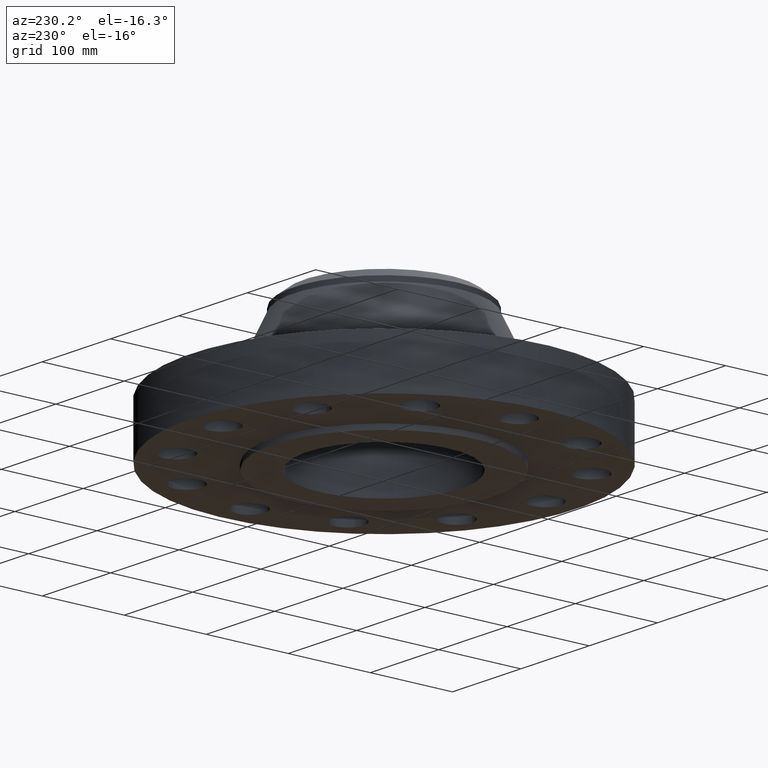
[diagram: clean part render]
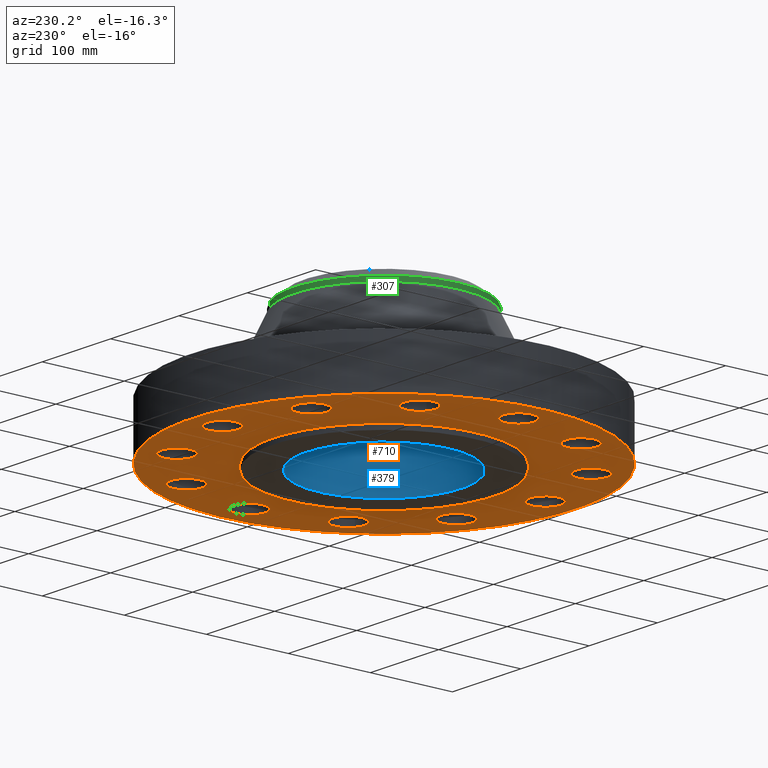
[diagram: same view with three faces highlighted in distinct colors, each labeled with its STEP entity id]
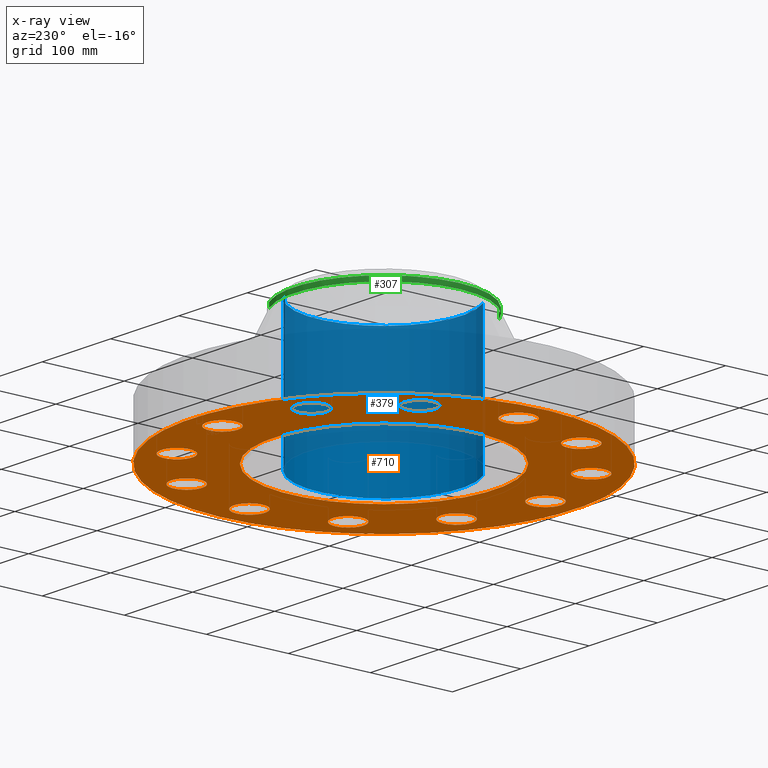
[diagram: x-ray of the same camera — body ghosted, the three highlighted faces saturated]
A machine part, auxiliary view with three faces highlighted in distinct colors.
The next image is the same camera in x-ray (body ghosted, the three faces saturated) — at least one of them is partly hidden behind the body in this view.
Their STEP definitions:

[orange] entity #710 — the highlighted planar face has unit normal (0, 0, -1).
#51=AXIS2_PLACEMENT_3D('Circle Axis2P3D',#49,#50,$) ;
#77=AXIS2_PLACEMENT_3D('Circle Axis2P3D',#75,#76,$) ;
#99=AXIS2_PLACEMENT_3D('Circle Axis2P3D',#97,#98,$) ;
#134=AXIS2_PLACEMENT_3D('Circle Axis2P3D',#132,#133,$) ;
#466=AXIS2_PLACEMENT_3D('Circle Axis2P3D',#464,#465,$) ;
#485=AXIS2_PLACEMENT_3D('Circle Axis2P3D',#483,#484,$) ;
#498=AXIS2_PLACEMENT_3D('Plane Axis2P3D',#495,#496,#497) ;
#514=AXIS2_PLACEMENT_3D('Circle Axis2P3D',#512,#513,$) ;
#523=AXIS2_PLACEMENT_3D('Circle Axis2P3D',#521,#522,$) ;
#532=AXIS2_PLACEMENT_3D('Circle Axis2P3D',#530,#531,$) ;
#541=AXIS2_PLACEMENT_3D('Circle Axis2P3D',#539,#540,$) ;
#550=AXIS2_PLACEMENT_3D('Circle Axis2P3D',#548,#549,$) ;
#559=AXIS2_PLACEMENT_3D('Circle Axis2P3D',#557,#558,$) ;
#568=AXIS2_PLACEMENT_3D('Circle Axis2P3D',#566,#567,$) ;
#577=AXIS2_PLACEMENT_3D('Circle Axis2P3D',#575,#576,$) ;
#586=AXIS2_PLACEMENT_3D('Circle Axis2P3D',#584,#585,$) ;
#595=AXIS2_PLACEMENT_3D('Circle Axis2P3D',#593,#594,$) ;
#604=AXIS2_PLACEMENT_3D('Circle Axis2P3D',#602,#603,$) ;
#613=AXIS2_PLACEMENT_3D('Circle Axis2P3D',#611,#612,$) ;
#622=AXIS2_PLACEMENT_3D('Circle Axis2P3D',#620,#621,$) ;
#631=AXIS2_PLACEMENT_3D('Circle Axis2P3D',#629,#630,$) ;
#640=AXIS2_PLACEMENT_3D('Circle Axis2P3D',#638,#639,$) ;
#649=AXIS2_PLACEMENT_3D('Circle Axis2P3D',#647,#648,$) ;
#658=AXIS2_PLACEMENT_3D('Circle Axis2P3D',#656,#657,$) ;
#667=AXIS2_PLACEMENT_3D('Circle Axis2P3D',#665,#666,$) ;
#676=AXIS2_PLACEMENT_3D('Circle Axis2P3D',#674,#675,$) ;
#685=AXIS2_PLACEMENT_3D('Circle Axis2P3D',#683,#684,$) ;
#694=AXIS2_PLACEMENT_3D('Circle Axis2P3D',#692,#693,$) ;
#703=AXIS2_PLACEMENT_3D('Circle Axis2P3D',#701,#702,$) ;
#44=CARTESIAN_POINT('Vertex',(7.09181307861,0.359569153955,-2.79741234551E-016)) ;
#49=CARTESIAN_POINT('Axis2P3D Location',(7.75000000003,0.,0.)) ;
#53=CARTESIAN_POINT('Vertex',(8.40818692145,-0.359569153955,-2.79741234551E-016)) ;
#75=CARTESIAN_POINT('Axis2P3D Location',(7.75000000003,0.,0.)) ;
#97=CARTESIAN_POINT('Axis2P3D Location',(0.,0.,1.1189649382E-015)) ;
#101=CARTESIAN_POINT('Vertex',(-4.43468623211,-8.11763869752,1.1189649382E-015)) ;
#103=CARTESIAN_POINT('Vertex',(4.43468623211,8.11763869752,1.1189649382E-015)) ;
#132=CARTESIAN_POINT('Axis2P3D Location',(0.,0.,1.1189649382E-015)) ;
#461=CARTESIAN_POINT('Vertex',(-2.54814673769,-4.66435131647,5.59482469102E-016)) ;
#464=CARTESIAN_POINT('Axis2P3D Location',(0.,0.,5.59482469102E-016)) ;
#468=CARTESIAN_POINT('Vertex',(2.54814673769,4.66435131647,5.59482469102E-016)) ;
#483=CARTESIAN_POINT('Axis2P3D Location',(0.,0.,5.59482469102E-016)) ;
#495=CARTESIAN_POINT('Axis2P3D Location',(0.,5.31500000002,0.)) ;
#512=CARTESIAN_POINT('Axis2P3D Location',(6.71169687936,-3.87500000002,0.)) ;
#516=CARTESIAN_POINT('Vertex',(6.32147486194,-3.23451051756,0.)) ;
#518=CARTESIAN_POINT('Vertex',(7.10191889677,-4.51548948247,-2.79741234551E-016)) ;
#521=CARTESIAN_POINT('Axis2P3D Location',(6.71169687936,-3.87500000002,0.)) ;
#530=CARTESIAN_POINT('Axis2P3D Location',(3.87500000002,-6.71169687936,0.)) ;
#534=CARTESIAN_POINT('Vertex',(3.85730256105,-5.96190570799,0.)) ;
#536=CARTESIAN_POINT('Vertex',(3.89269743898,-7.46148805072,-2.79741234551E-016)) ;
#539=CARTESIAN_POINT('Axis2P3D Location',(3.87500000002,-6.71169687936,0.)) ;
#548=CARTESIAN_POINT('Axis2P3D Location',(-4.89547160465E-016,-7.75000000003,0.)) ;
#552=CARTESIAN_POINT('Vertex',(0.359569153955,-7.09181307861,0.)) ;
#554=CARTESIAN_POINT('Vertex',(-0.359569153955,-8.40818692145,-2.79741234551E-016)) ;
#557=CARTESIAN_POINT('Axis2P3D Location',(-8.39223703654E-016,-7.75000000003,0.)) ;
#566=CARTESIAN_POINT('Axis2P3D Location',(-3.87500000002,-6.71169687936,0.)) ;
#570=CARTESIAN_POINT('Vertex',(-3.23451051756,-6.32147486194,0.)) ;
#572=CARTESIAN_POINT('Vertex',(-4.51548948247,-7.10191889677,-2.51767111096E-015)) ;
#575=CARTESIAN_POINT('Axis2P3D Location',(-3.87500000002,-6.71169687936,0.)) ;
#584=CARTESIAN_POINT('Axis2P3D Location',(-6.71169687936,-3.87500000002,0.)) ;
#588=CARTESIAN_POINT('Vertex',(-5.96190570799,-3.85730256105,0.)) ;
#590=CARTESIAN_POINT('Vertex',(-7.46148805072,-3.89269743898,-2.79741234551E-016)) ;
#593=CARTESIAN_POINT('Axis2P3D Location',(-6.71169687936,-3.87500000002,0.)) ;
#602=CARTESIAN_POINT('Axis2P3D Location',(-7.75000000003,-1.1189649382E-015,0.)) ;
#606=CARTESIAN_POINT('Vertex',(-7.09181307861,-0.359569153955,0.)) ;
#608=CARTESIAN_POINT('Vertex',(-8.40818692145,0.359569153955,-2.79741234551E-016)) ;
#611=CARTESIAN_POINT('Axis2P3D Location',(-7.75000000003,-1.1189649382E-015,0.)) ;
#620=CARTESIAN_POINT('Axis2P3D Location',(-6.71169687936,3.87500000002,0.)) ;
#624=CARTESIAN_POINT('Vertex',(-6.32147486194,3.23451051756,0.)) ;
#626=CARTESIAN_POINT('Vertex',(-7.10191889677,4.51548948247,-2.79741234551E-016)) ;
#629=CARTESIAN_POINT('Axis2P3D Location',(-6.71169687936,3.87500000002,0.)) ;
#638=CARTESIAN_POINT('Axis2P3D Location',(-3.87500000002,6.71169687936,0.)) ;
#642=CARTESIAN_POINT('Vertex',(-3.85730256105,5.96190570799,0.)) ;
#644=CARTESIAN_POINT('Vertex',(-3.89269743898,7.46148805072,-2.79741234551E-016)) ;
#647=CARTESIAN_POINT('Axis2P3D Location',(-3.87500000002,6.71169687936,0.)) ;
#656=CARTESIAN_POINT('Axis2P3D Location',(-5.59482469102E-016,7.75000000003,0.)) ;
#660=CARTESIAN_POINT('Vertex',(-0.359569153955,7.09181307861,0.)) ;
#662=CARTESIAN_POINT('Vertex',(0.359569153955,8.40818692145,-2.79741234551E-016)) ;
#665=CARTESIAN_POINT('Axis2P3D Location',(-2.09805925913E-016,7.75000000003,0.)) ;
#674=CARTESIAN_POINT('Axis2P3D Location',(3.87500000002,6.71169687936,0.)) ;
#678=CARTESIAN_POINT('Vertex',(3.23451051756,6.32147486194,0.)) ;
#680=CARTESIAN_POINT('Vertex',(4.51548948247,7.10191889677,-2.79741234551E-016)) ;
#683=CARTESIAN_POINT('Axis2P3D Location',(3.87500000002,6.71169687936,0.)) ;
#692=CARTESIAN_POINT('Axis2P3D Location',(6.71169687936,3.87500000002,0.)) ;
#696=CARTESIAN_POINT('Vertex',(5.96190570799,3.85730256105,0.)) ;
#698=CARTESIAN_POINT('Vertex',(7.46148805072,3.89269743898,-2.79741234551E-016)) ;
#701=CARTESIAN_POINT('Axis2P3D Location',(6.71169687936,3.87500000002,0.)) ;
#50=DIRECTION('Axis2P3D Direction',(0.,-0.,-0.0393700787402)) ;
#76=DIRECTION('Axis2P3D Direction',(0.,-0.,-0.0393700787402)) ;
#98=DIRECTION('Axis2P3D Direction',(0.,0.,-0.0393700787402)) ;
#133=DIRECTION('Axis2P3D Direction',(0.,0.,-0.0393700787402)) ;
#465=DIRECTION('Axis2P3D Direction',(0.,0.,-0.0393700787402)) ;
#484=DIRECTION('Axis2P3D Direction',(0.,0.,-0.0393700787402)) ;
#496=DIRECTION('Axis2P3D Direction',(0.,0.,-0.0393700787402)) ;
#497=DIRECTION('Axis2P3D XDirection',(0.0393700787402,0.,0.)) ;
#513=DIRECTION('Axis2P3D Direction',(0.,0.,-0.0393700787402)) ;
#522=DIRECTION('Axis2P3D Direction',(0.,0.,-0.0393700787402)) ;
#531=DIRECTION('Axis2P3D Direction',(0.,0.,-0.0393700787402)) ;
#540=DIRECTION('Axis2P3D Direction',(0.,0.,-0.0393700787402)) ;
#549=DIRECTION('Axis2P3D Direction',(0.,0.,-0.0393700787402)) ;
#558=DIRECTION('Axis2P3D Direction',(0.,0.,-0.0393700787402)) ;
#567=DIRECTION('Axis2P3D Direction',(0.,0.,-0.0393700787402)) ;
#576=DIRECTION('Axis2P3D Direction',(0.,0.,-0.0393700787402)) ;
#585=DIRECTION('Axis2P3D Direction',(0.,0.,-0.0393700787402)) ;
#594=DIRECTION('Axis2P3D Direction',(0.,0.,-0.0393700787402)) ;
#603=DIRECTION('Axis2P3D Direction',(0.,0.,-0.0393700787402)) ;
#612=DIRECTION('Axis2P3D Direction',(0.,0.,-0.0393700787402)) ;
#621=DIRECTION('Axis2P3D Direction',(0.,0.,-0.0393700787402)) ;
#630=DIRECTION('Axis2P3D Direction',(0.,0.,-0.0393700787402)) ;
#639=DIRECTION('Axis2P3D Direction',(0.,0.,-0.0393700787402)) ;
#648=DIRECTION('Axis2P3D Direction',(0.,0.,-0.0393700787402)) ;
#657=DIRECTION('Axis2P3D Direction',(0.,0.,-0.0393700787402)) ;
#666=DIRECTION('Axis2P3D Direction',(0.,0.,-0.0393700787402)) ;
#675=DIRECTION('Axis2P3D Direction',(0.,0.,-0.0393700787402)) ;
#684=DIRECTION('Axis2P3D Direction',(0.,0.,-0.0393700787402)) ;
#693=DIRECTION('Axis2P3D Direction',(0.,0.,-0.0393700787402)) ;
#702=DIRECTION('Axis2P3D Direction',(0.,0.,-0.0393700787402)) ;
#501=ORIENTED_EDGE('',*,*,#105,.T.) ;
#502=ORIENTED_EDGE('',*,*,#136,.T.) ;
#505=ORIENTED_EDGE('',*,*,#79,.F.) ;
#506=ORIENTED_EDGE('',*,*,#55,.F.) ;
#509=ORIENTED_EDGE('',*,*,#487,.F.) ;
#510=ORIENTED_EDGE('',*,*,#470,.F.) ;
#527=ORIENTED_EDGE('',*,*,#520,.F.) ;
#528=ORIENTED_EDGE('',*,*,#525,.F.) ;
#545=ORIENTED_EDGE('',*,*,#538,.F.) ;
#546=ORIENTED_EDGE('',*,*,#543,.F.) ;
#563=ORIENTED_EDGE('',*,*,#556,.F.) ;
#564=ORIENTED_EDGE('',*,*,#561,.F.) ;
#581=ORIENTED_EDGE('',*,*,#574,.F.) ;
#582=ORIENTED_EDGE('',*,*,#579,.F.) ;
#599=ORIENTED_EDGE('',*,*,#592,.F.) ;
#600=ORIENTED_EDGE('',*,*,#597,.F.) ;
#617=ORIENTED_EDGE('',*,*,#610,.F.) ;
#618=ORIENTED_EDGE('',*,*,#615,.F.) ;
#635=ORIENTED_EDGE('',*,*,#628,.F.) ;
#636=ORIENTED_EDGE('',*,*,#633,.F.) ;
#653=ORIENTED_EDGE('',*,*,#646,.F.) ;
#654=ORIENTED_EDGE('',*,*,#651,.F.) ;
#671=ORIENTED_EDGE('',*,*,#664,.F.) ;
#672=ORIENTED_EDGE('',*,*,#669,.F.) ;
#689=ORIENTED_EDGE('',*,*,#682,.F.) ;
#690=ORIENTED_EDGE('',*,*,#687,.F.) ;
#707=ORIENTED_EDGE('',*,*,#700,.F.) ;
#708=ORIENTED_EDGE('',*,*,#705,.F.) ;
#507=FACE_BOUND('',#504,.T.) ;
#511=FACE_BOUND('',#508,.T.) ;
#529=FACE_BOUND('',#526,.T.) ;
#547=FACE_BOUND('',#544,.T.) ;
#565=FACE_BOUND('',#562,.T.) ;
#583=FACE_BOUND('',#580,.T.) ;
#601=FACE_BOUND('',#598,.T.) ;
#619=FACE_BOUND('',#616,.T.) ;
#637=FACE_BOUND('',#634,.T.) ;
#655=FACE_BOUND('',#652,.T.) ;
#673=FACE_BOUND('',#670,.T.) ;
#691=FACE_BOUND('',#688,.T.) ;
#709=FACE_BOUND('',#706,.T.) ;
#710=ADVANCED_FACE('PartBody',(#503,#507,#511,#529,#547,#565,#583,#601,#619,#637,#655,#673,#691,#709),#499,.T.) ;
#52=CIRCLE('generated circle',#51,0.750000000003) ;
#78=CIRCLE('generated circle',#77,0.750000000003) ;
#100=CIRCLE('generated circle',#99,9.25000000004) ;
#135=CIRCLE('generated circle',#134,9.25000000004) ;
#467=CIRCLE('generated circle',#466,5.31500000002) ;
#486=CIRCLE('generated circle',#485,5.31500000002) ;
#515=CIRCLE('generated circle',#514,0.750000000003) ;
#524=CIRCLE('generated circle',#523,0.750000000003) ;
#533=CIRCLE('generated circle',#532,0.750000000003) ;
#542=CIRCLE('generated circle',#541,0.750000000003) ;
#551=CIRCLE('generated circle',#550,0.750000000003) ;
#560=CIRCLE('generated circle',#559,0.750000000003) ;
#569=CIRCLE('generated circle',#568,0.750000000003) ;
#578=CIRCLE('generated circle',#577,0.750000000003) ;
#587=CIRCLE('generated circle',#586,0.750000000003) ;
#596=CIRCLE('generated circle',#595,0.750000000003) ;
#605=CIRCLE('generated circle',#604,0.750000000003) ;
#614=CIRCLE('generated circle',#613,0.750000000003) ;
#623=CIRCLE('generated circle',#622,0.750000000003) ;
#632=CIRCLE('generated circle',#631,0.750000000003) ;
#641=CIRCLE('generated circle',#640,0.750000000003) ;
#650=CIRCLE('generated circle',#649,0.750000000003) ;
#659=CIRCLE('generated circle',#658,0.750000000003) ;
#668=CIRCLE('generated circle',#667,0.750000000003) ;
#677=CIRCLE('generated circle',#676,0.750000000003) ;
#686=CIRCLE('generated circle',#685,0.750000000003) ;
#695=CIRCLE('generated circle',#694,0.750000000003) ;
#704=CIRCLE('generated circle',#703,0.750000000003) ;
#55=EDGE_CURVE('',#45,#54,#52,.T.) ;
#79=EDGE_CURVE('',#54,#45,#78,.T.) ;
#105=EDGE_CURVE('',#102,#104,#100,.T.) ;
#136=EDGE_CURVE('',#104,#102,#135,.T.) ;
#470=EDGE_CURVE('',#462,#469,#467,.T.) ;
#487=EDGE_CURVE('',#469,#462,#486,.T.) ;
#520=EDGE_CURVE('',#517,#519,#515,.T.) ;
#525=EDGE_CURVE('',#519,#517,#524,.T.) ;
#538=EDGE_CURVE('',#535,#537,#533,.T.) ;
#543=EDGE_CURVE('',#537,#535,#542,.T.) ;
#556=EDGE_CURVE('',#553,#555,#551,.T.) ;
#561=EDGE_CURVE('',#555,#553,#560,.T.) ;
#574=EDGE_CURVE('',#571,#573,#569,.T.) ;
#579=EDGE_CURVE('',#573,#571,#578,.T.) ;
#592=EDGE_CURVE('',#589,#591,#587,.T.) ;
#597=EDGE_CURVE('',#591,#589,#596,.T.) ;
#610=EDGE_CURVE('',#607,#609,#605,.T.) ;
#615=EDGE_CURVE('',#609,#607,#614,.T.) ;
#628=EDGE_CURVE('',#625,#627,#623,.T.) ;
#633=EDGE_CURVE('',#627,#625,#632,.T.) ;
#646=EDGE_CURVE('',#643,#645,#641,.T.) ;
#651=EDGE_CURVE('',#645,#643,#650,.T.) ;
#664=EDGE_CURVE('',#661,#663,#659,.T.) ;
#669=EDGE_CURVE('',#663,#661,#668,.T.) ;
#682=EDGE_CURVE('',#679,#681,#677,.T.) ;
#687=EDGE_CURVE('',#681,#679,#686,.T.) ;
#700=EDGE_CURVE('',#697,#699,#695,.T.) ;
#705=EDGE_CURVE('',#699,#697,#704,.T.) ;
#500=EDGE_LOOP('',(#501,#502)) ;
#504=EDGE_LOOP('',(#505,#506)) ;
#508=EDGE_LOOP('',(#509,#510)) ;
#526=EDGE_LOOP('',(#527,#528)) ;
#544=EDGE_LOOP('',(#545,#546)) ;
#562=EDGE_LOOP('',(#563,#564)) ;
#580=EDGE_LOOP('',(#581,#582)) ;
#598=EDGE_LOOP('',(#599,#600)) ;
#616=EDGE_LOOP('',(#617,#618)) ;
#634=EDGE_LOOP('',(#635,#636)) ;
#652=EDGE_LOOP('',(#653,#654)) ;
#670=EDGE_LOOP('',(#671,#672)) ;
#688=EDGE_LOOP('',(#689,#690)) ;
#706=EDGE_LOOP('',(#707,#708)) ;
#503=FACE_OUTER_BOUND('',#500,.T.) ;
#499=PLANE('',#498) ;
#45=VERTEX_POINT('',#44) ;
#54=VERTEX_POINT('',#53) ;
#102=VERTEX_POINT('',#101) ;
#104=VERTEX_POINT('',#103) ;
#462=VERTEX_POINT('',#461) ;
#469=VERTEX_POINT('',#468) ;
#517=VERTEX_POINT('',#516) ;
#519=VERTEX_POINT('',#518) ;
#535=VERTEX_POINT('',#534) ;
#537=VERTEX_POINT('',#536) ;
#553=VERTEX_POINT('',#552) ;
#555=VERTEX_POINT('',#554) ;
#571=VERTEX_POINT('',#570) ;
#573=VERTEX_POINT('',#572) ;
#589=VERTEX_POINT('',#588) ;
#591=VERTEX_POINT('',#590) ;
#607=VERTEX_POINT('',#606) ;
#609=VERTEX_POINT('',#608) ;
#625=VERTEX_POINT('',#624) ;
#627=VERTEX_POINT('',#626) ;
#643=VERTEX_POINT('',#642) ;
#645=VERTEX_POINT('',#644) ;
#661=VERTEX_POINT('',#660) ;
#663=VERTEX_POINT('',#662) ;
#679=VERTEX_POINT('',#678) ;
#681=VERTEX_POINT('',#680) ;
#697=VERTEX_POINT('',#696) ;
#699=VERTEX_POINT('',#698) ;

[blue] entity #379 — the highlighted cylindrical surface (partial cylindrical patch) has radius 94.4499 mm, axis along (0, 0, -1).
#343=AXIS2_PLACEMENT_3D('Cylinder Axis2P3D',#340,#341,#342) ;
#347=AXIS2_PLACEMENT_3D('Circle Axis2P3D',#345,#346,$) ;
#363=AXIS2_PLACEMENT_3D('Circle Axis2P3D',#361,#362,$) ;
#340=CARTESIAN_POINT('Axis2P3D Location',(0.,0.,3.06500000001)) ;
#345=CARTESIAN_POINT('Axis2P3D Location',(0.,0.,6.38000000003)) ;
#349=CARTESIAN_POINT('Vertex',(1.78274386531,3.2632907564,6.38000000003)) ;
#351=CARTESIAN_POINT('Vertex',(-1.78274386531,-3.2632907564,6.38000000003)) ;
#354=CARTESIAN_POINT('Line Origine',(1.78274386531,3.2632907564,3.06500000001)) ;
#358=CARTESIAN_POINT('Vertex',(1.78274386531,3.2632907564,-0.250000000001)) ;
#361=CARTESIAN_POINT('Axis2P3D Location',(0.,0.,-0.250000000001)) ;
#365=CARTESIAN_POINT('Vertex',(-1.78274386531,-3.2632907564,-0.250000000001)) ;
#368=CARTESIAN_POINT('Line Origine',(-1.78274386531,-3.2632907564,3.06500000001)) ;
#341=DIRECTION('Axis2P3D Direction',(0.,0.,-0.0393700787402)) ;
#342=DIRECTION('Axis2P3D XDirection',(-0.0188750212049,-0.0345504945626,0.)) ;
#346=DIRECTION('Axis2P3D Direction',(0.,0.,-0.0393700787402)) ;
#355=DIRECTION('Vector Direction',(0.,0.,-0.0393700787402)) ;
#362=DIRECTION('Axis2P3D Direction',(0.,0.,-0.0393700787402)) ;
#369=DIRECTION('Vector Direction',(0.,0.,-0.0393700787402)) ;
#356=VECTOR('Line Direction',#355,0.0393700787402) ;
#370=VECTOR('Line Direction',#369,0.0393700787402) ;
#374=ORIENTED_EDGE('',*,*,#353,.F.) ;
#375=ORIENTED_EDGE('',*,*,#360,.T.) ;
#376=ORIENTED_EDGE('',*,*,#367,.T.) ;
#377=ORIENTED_EDGE('',*,*,#372,.F.) ;
#379=ADVANCED_FACE('PartBody',(#378),#344,.F.) ;
#348=CIRCLE('generated circle',#347,3.71850000001) ;
#364=CIRCLE('generated circle',#363,3.71850000001) ;
#344=CYLINDRICAL_SURFACE('generated cylinder',#343,3.71850000001) ;
#353=EDGE_CURVE('',#350,#352,#348,.T.) ;
#360=EDGE_CURVE('',#350,#359,#357,.T.) ;
#367=EDGE_CURVE('',#359,#366,#364,.T.) ;
#372=EDGE_CURVE('',#352,#366,#371,.T.) ;
#373=EDGE_LOOP('',(#374,#375,#376,#377)) ;
#378=FACE_OUTER_BOUND('',#373,.T.) ;
#357=LINE('Line',#354,#356) ;
#371=LINE('Line',#368,#370) ;
#350=VERTEX_POINT('',#349) ;
#352=VERTEX_POINT('',#351) ;
#359=VERTEX_POINT('',#358) ;
#366=VERTEX_POINT('',#365) ;

[green] entity #307 — the highlighted cylindrical surface (partial cylindrical patch) has radius 109.601 mm, axis along (0, 0, -1).
#239=AXIS2_PLACEMENT_3D('Circle Axis2P3D',#237,#238,$) ;
#252=AXIS2_PLACEMENT_3D('Cylinder Axis2P3D',#249,#250,#251) ;
#290=AXIS2_PLACEMENT_3D('Circle Axis2P3D',#288,#289,$) ;
#297=AXIS2_PLACEMENT_3D('Circle Axis2P3D',#295,#296,$) ;
#215=CARTESIAN_POINT('Vertex',(2.06872119909,3.78676875457,5.74648842713)) ;
#222=CARTESIAN_POINT('Vertex',(-2.06872119909,-3.78676875457,5.74648842713)) ;
#237=CARTESIAN_POINT('Axis2P3D Location',(0.,0.,5.74648842713)) ;
#249=CARTESIAN_POINT('Axis2P3D Location',(0.,0.,3.06500000001)) ;
#254=CARTESIAN_POINT('Line Origine',(-2.06872119909,-3.78676875457,5.86459866335)) ;
#258=CARTESIAN_POINT('Vertex',(-2.06872119909,-3.78676875457,5.98270889957)) ;
#261=CARTESIAN_POINT('Line Origine',(2.06872119909,3.78676875457,5.86459866335)) ;
#265=CARTESIAN_POINT('Vertex',(2.06872119909,3.78676875457,5.98270889957)) ;
#288=CARTESIAN_POINT('Axis2P3D Location',(0.,0.,5.98270889957)) ;
#292=CARTESIAN_POINT('Vertex',(-2.06872119909,3.78676875457,5.98270889957)) ;
#295=CARTESIAN_POINT('Axis2P3D Location',(0.,0.,5.98270889957)) ;
#238=DIRECTION('Axis2P3D Direction',(0.,0.,-0.0393700787402)) ;
#250=DIRECTION('Axis2P3D Direction',(0.,0.,-0.0393700787402)) ;
#251=DIRECTION('Axis2P3D XDirection',(-0.0188750212049,-0.0345504945626,0.)) ;
#255=DIRECTION('Vector Direction',(0.,0.,-0.0393700787402)) ;
#262=DIRECTION('Vector Direction',(0.,0.,-0.0393700787402)) ;
#289=DIRECTION('Axis2P3D Direction',(0.,0.,-0.0393700787402)) ;
#296=DIRECTION('Axis2P3D Direction',(0.,0.,-0.0393700787402)) ;
#256=VECTOR('Line Direction',#255,0.0393700787402) ;
#263=VECTOR('Line Direction',#262,0.0393700787402) ;
#301=ORIENTED_EDGE('',*,*,#267,.F.) ;
#302=ORIENTED_EDGE('',*,*,#241,.F.) ;
#303=ORIENTED_EDGE('',*,*,#260,.T.) ;
#304=ORIENTED_EDGE('',*,*,#294,.F.) ;
#305=ORIENTED_EDGE('',*,*,#299,.T.) ;
#307=ADVANCED_FACE('PartBody',(#306),#253,.T.) ;
#240=CIRCLE('generated circle',#239,4.31500000002) ;
#291=CIRCLE('generated circle',#290,4.31500000002) ;
#298=CIRCLE('generated circle',#297,4.31500000002) ;
#253=CYLINDRICAL_SURFACE('generated cylinder',#252,4.31500000002) ;
#241=EDGE_CURVE('',#223,#216,#240,.T.) ;
#260=EDGE_CURVE('',#223,#259,#257,.F.) ;
#267=EDGE_CURVE('',#216,#266,#264,.F.) ;
#294=EDGE_CURVE('',#293,#259,#291,.F.) ;
#299=EDGE_CURVE('',#293,#266,#298,.T.) ;
#300=EDGE_LOOP('',(#301,#302,#303,#304,#305)) ;
#306=FACE_OUTER_BOUND('',#300,.T.) ;
#257=LINE('Line',#254,#256) ;
#264=LINE('Line',#261,#263) ;
#216=VERTEX_POINT('',#215) ;
#223=VERTEX_POINT('',#222) ;
#259=VERTEX_POINT('',#258) ;
#266=VERTEX_POINT('',#265) ;
#293=VERTEX_POINT('',#292) ;